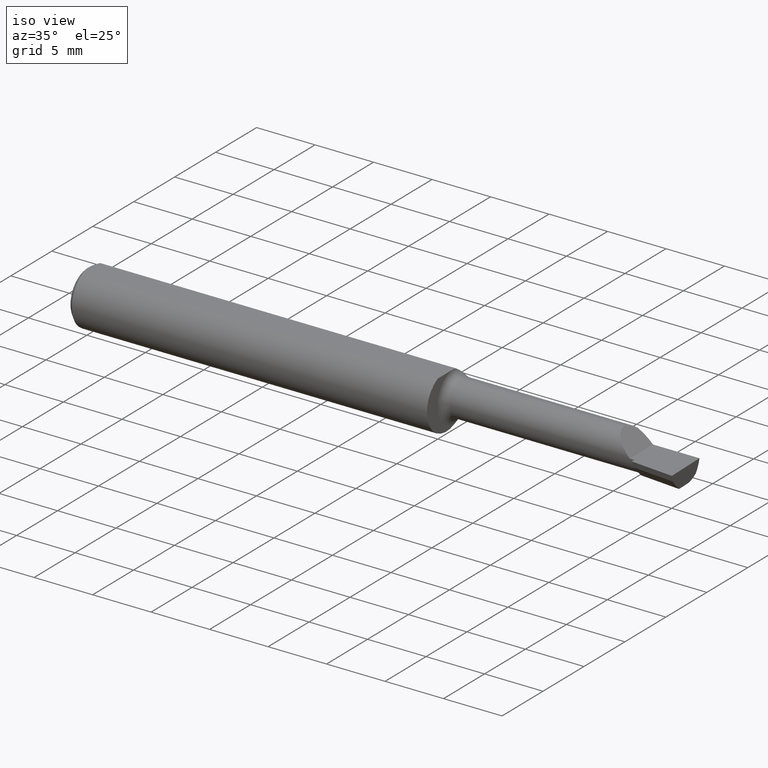
[diagram: clean part render]
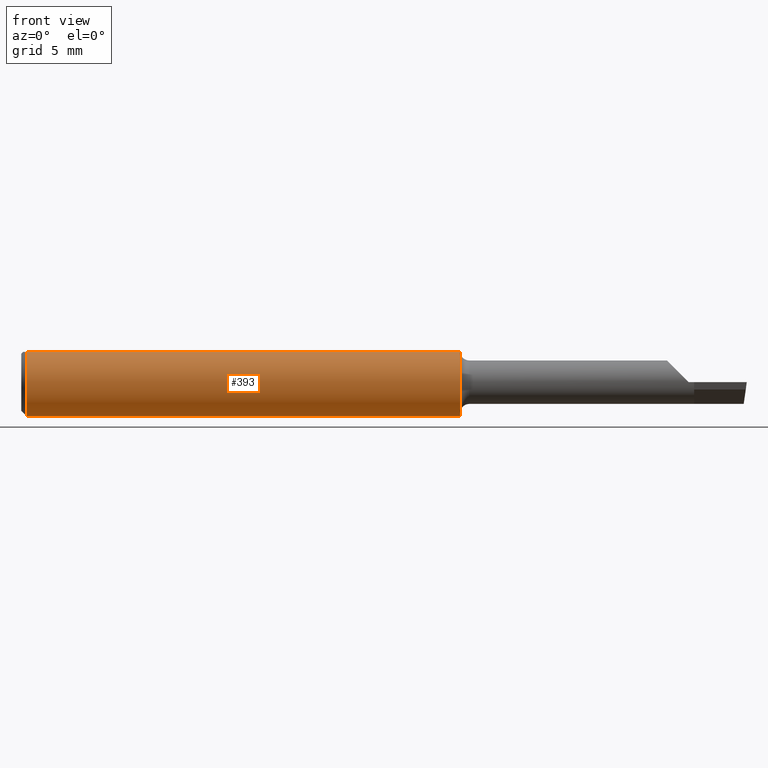
[diagram: tour spotlight — one face highlighted and labeled with its STEP entity id]
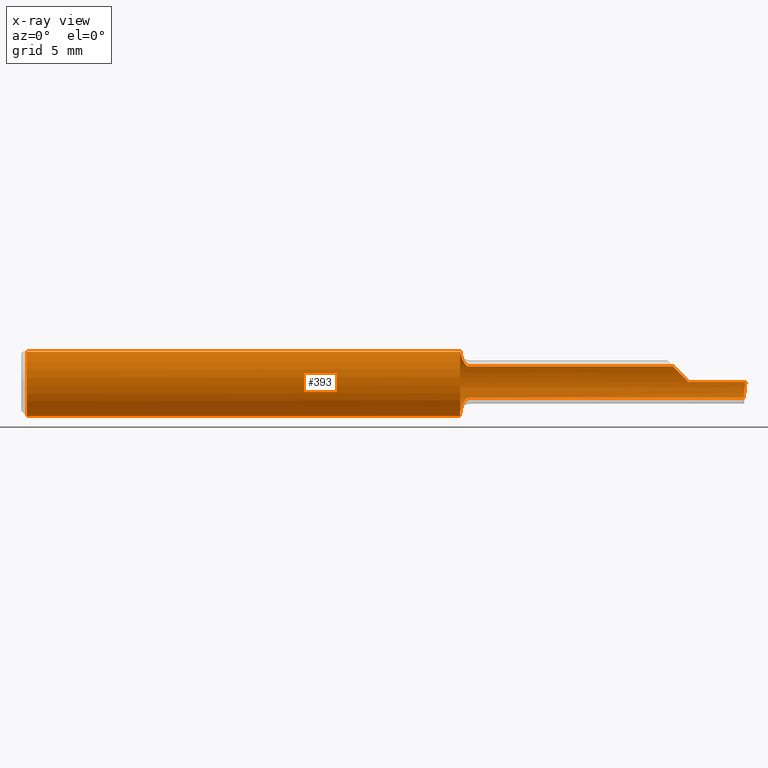
[diagram: x-ray of the same camera — body ghosted, this tour face saturated]
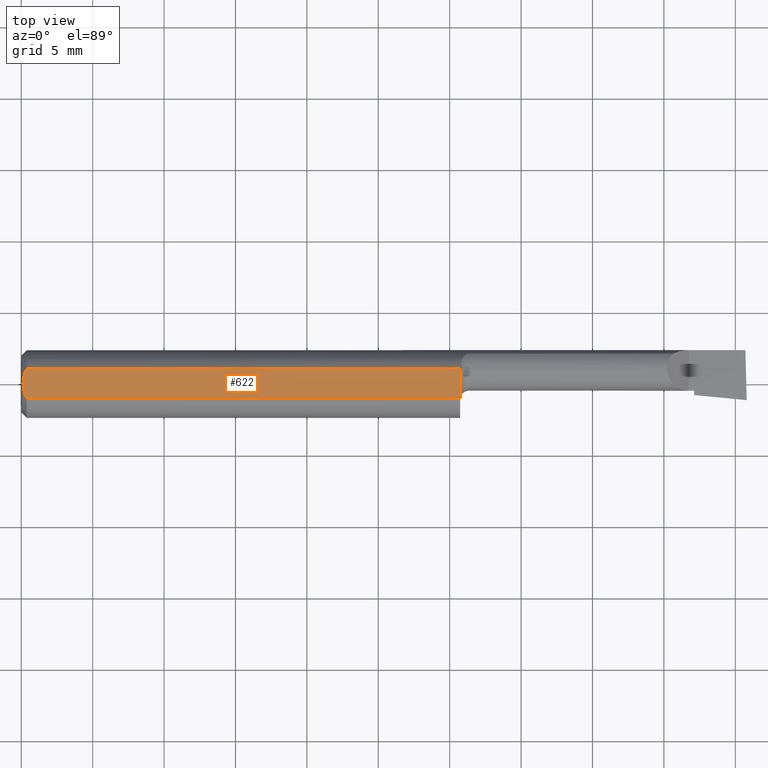
[diagram: tour spotlight — one face highlighted and labeled with its STEP entity id]
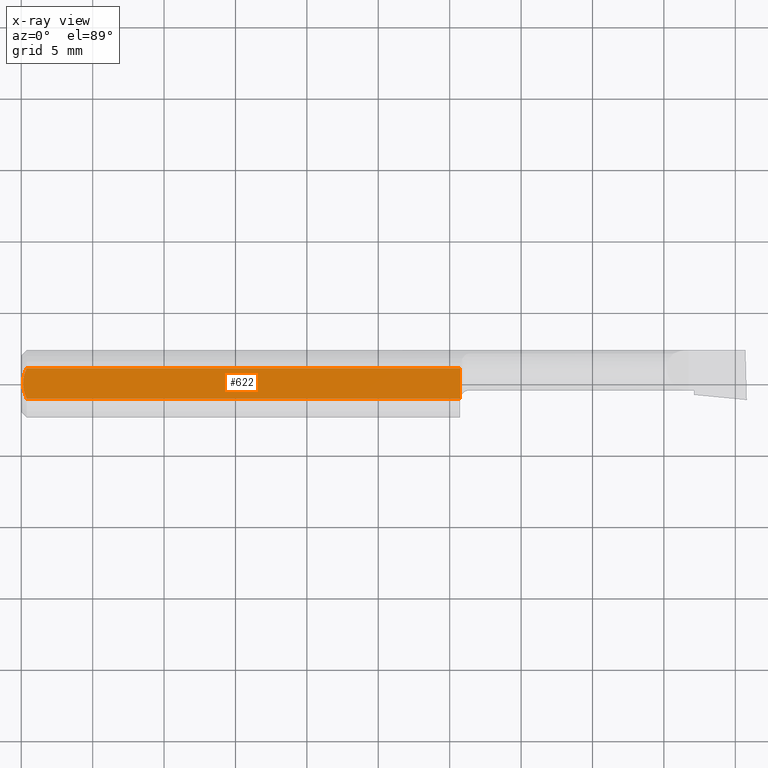
[diagram: x-ray of the same camera — body ghosted, this tour face saturated]
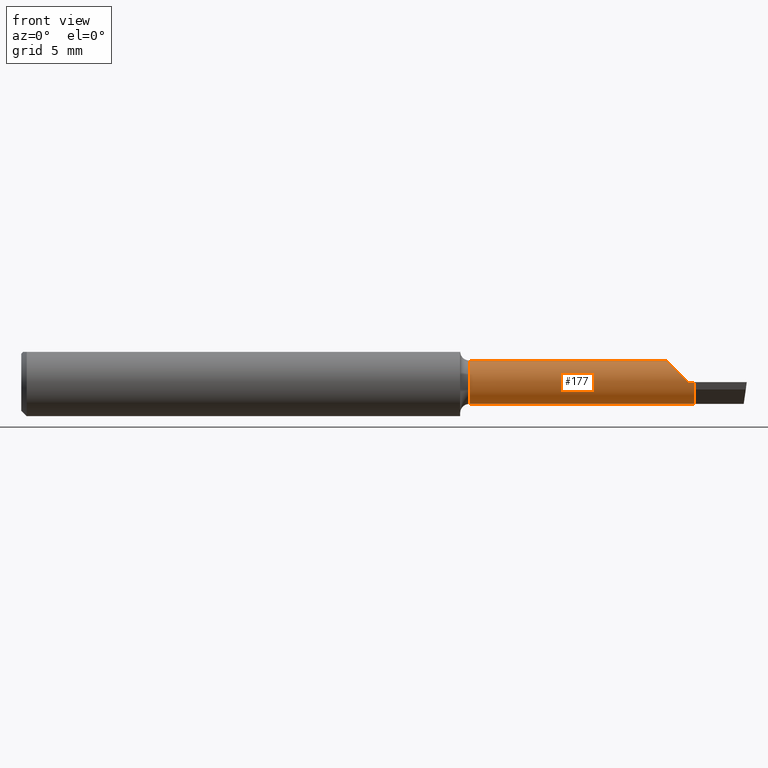
[diagram: tour spotlight — one face highlighted and labeled with its STEP entity id]
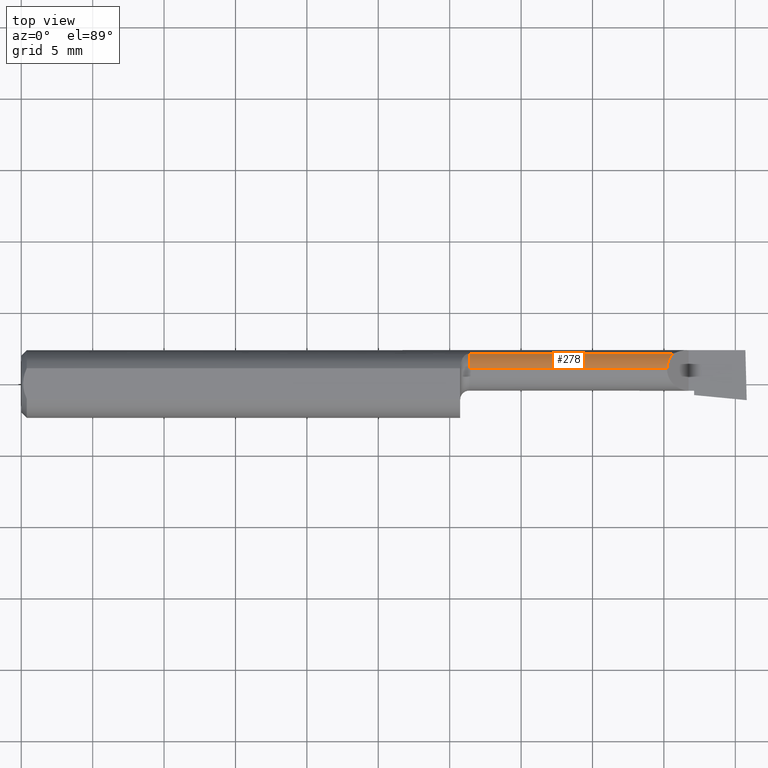
[diagram: tour spotlight — one face highlighted and labeled with its STEP entity id]
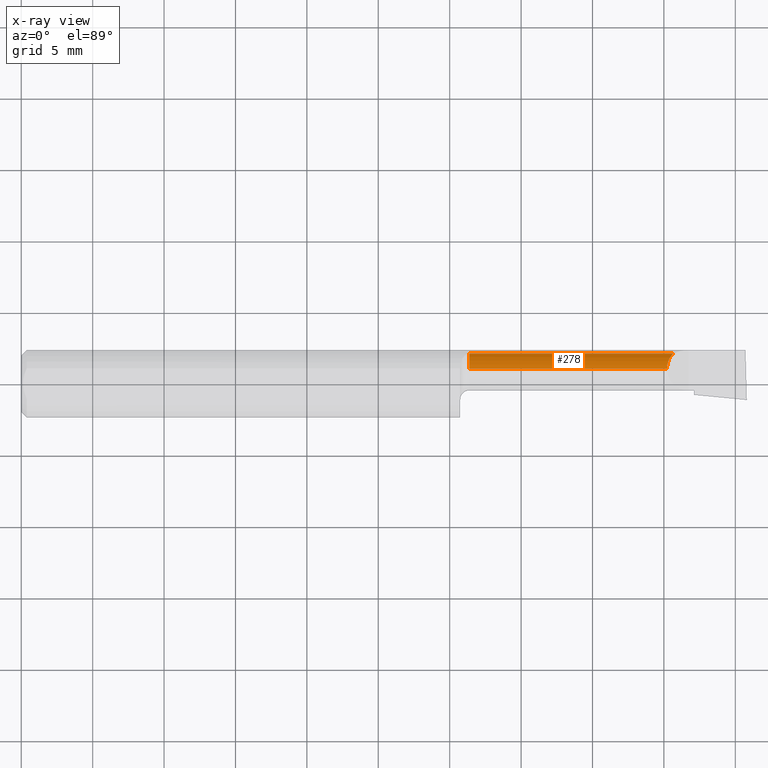
[diagram: x-ray of the same camera — body ghosted, this tour face saturated]
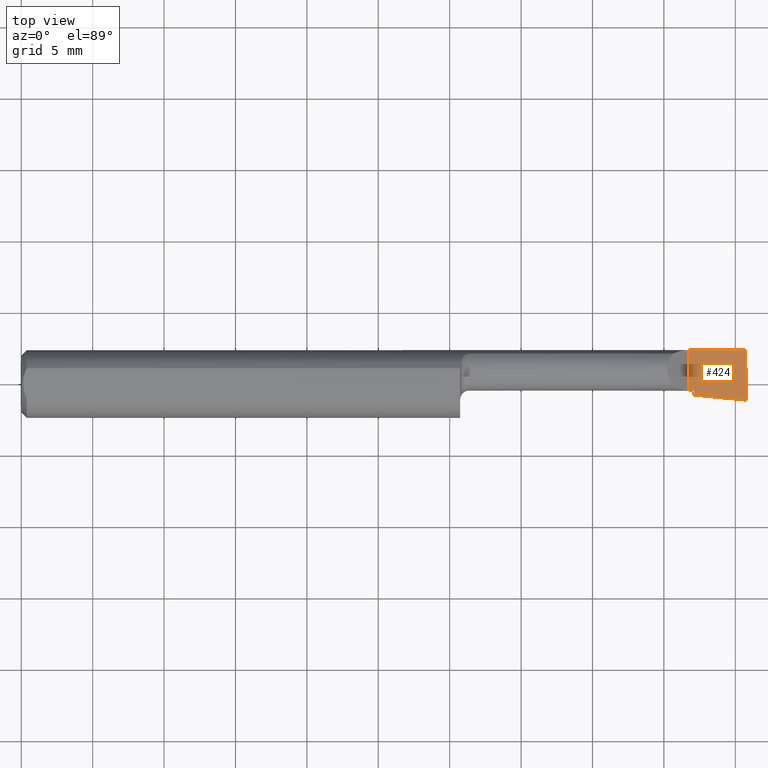
[diagram: tour spotlight — one face highlighted and labeled with its STEP entity id]
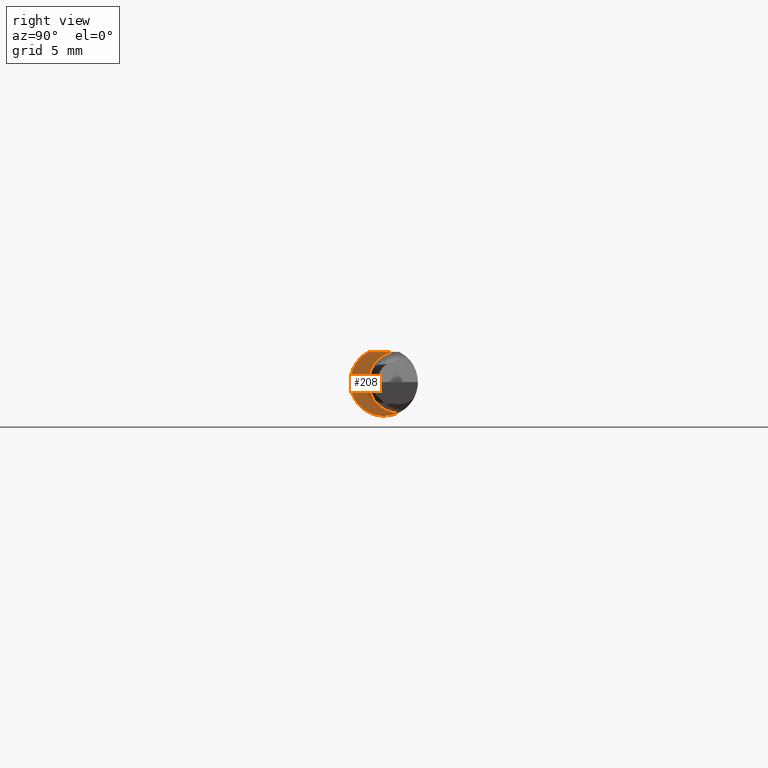
[diagram: tour spotlight — one face highlighted and labeled with its STEP entity id]
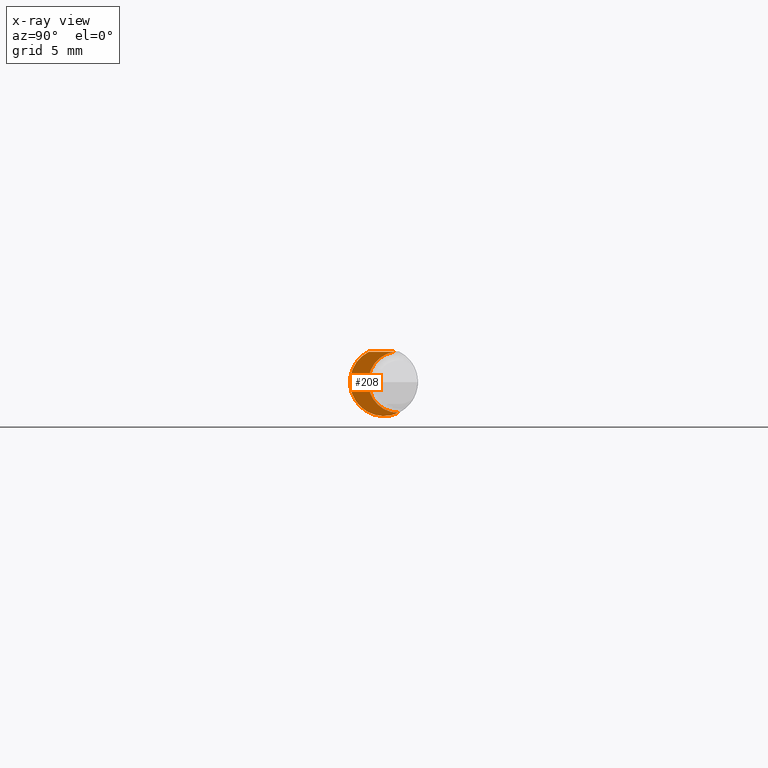
[diagram: x-ray of the same camera — body ghosted, this tour face saturated]
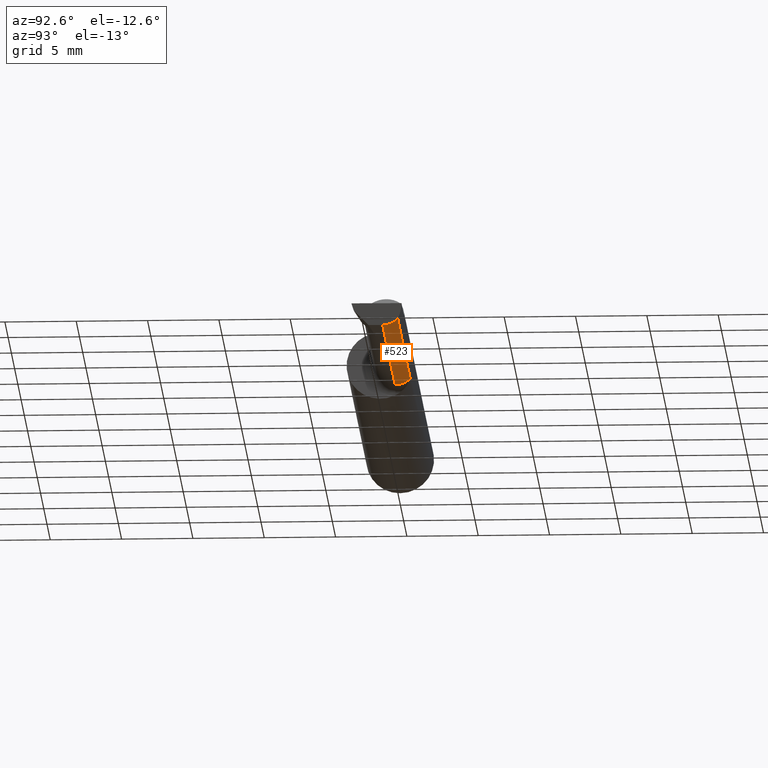
[diagram: tour spotlight — one face highlighted and labeled with its STEP entity id]
A machine part: a face-by-face anatomy tour. The part has 19 B-rep faces; the first image is the clean iso view, then the 7 largest visible faces are spotlighted one at a time (largest first), each with its STEP entity span.

Face 1 — front view, entity #393. An x-ray twin of the same camera follows (body ghosted, this face saturated) — the face is partly hidden behind the body. In plain terms, the highlighted cylindrical surface (edge-blend (fillet) strip) has radius 2.3774 mm, axis along (-1, -0, -0).
Definition (entity closure, byte-faithful):
#2 = CARTESIAN_POINT ( 'NONE',  ( 1.213721006865827290, 0.06478644025684748842, 0.06776242552123297458 ) ) ;
#8 = ORIENTED_EDGE ( 'NONE', *, *, #196, .T. ) ;
#10 = CARTESIAN_POINT ( 'NONE',  ( 1.210020127471513218, 0.04150000000000002298, -0.08389702020930182857 ) ) ;
#12 = CARTESIAN_POINT ( 'NONE',  ( 1.810264301876177706, 0.09002356847881784474, 0.02973569812382189162 ) ) ;
#23 = CARTESIAN_POINT ( 'NONE',  ( 1.234999999999999876, 0.08307469879518031286, -0.04312255117789348668 ) ) ;
#27 = VERTEX_POINT ( 'NONE', #529 ) ;
#33 = EDGE_CURVE ( 'NONE', #671, #87, #301, .T. ) ;
#38 = B_SPLINE_CURVE_WITH_KNOTS ( 'NONE', 3,
 ( #10, #270, #443, #650 ),
 .UNSPECIFIED., .F., .F.,
 ( 4, 4 ),
 ( 0.001735506710063781152, 0.001793010945052093703 ),
 .UNSPECIFIED. ) ;
#43 = VERTEX_POINT ( 'NONE', #203 ) ;
#58 = LINE ( 'NONE', #277, #188 ) ;
#68 = EDGE_CURVE ( 'NONE', #437, #609, #517, .T. ) ;
#71 =( BOUNDED_CURVE ( )  B_SPLINE_CURVE ( 3, ( #101, #153, #99, #470 ),
 .UNSPECIFIED., .F., .F. ) 
 B_SPLINE_CURVE_WITH_KNOTS ( ( 4, 4 ),
 ( 4.934903206476700888, 5.413699339028699598 ),
 .UNSPECIFIED. ) 
 CURVE ( )  GEOMETRIC_REPRESENTATION_ITEM ( )  RATIONAL_B_SPLINE_CURVE ( ( 1.000000000000000000, 0.9809872534005955602, 0.9809872534005955602, 1.000000000000000000 ) ) 
 REPRESENTATION_ITEM ( '' )  );
#87 = VERTEX_POINT ( 'NONE', #628 ) ;
#89 = CARTESIAN_POINT ( 'NONE',  ( 1.210020127471513218, 0.04150000000000002298, -0.08389702020930182857 ) ) ;
#90 = ORIENTED_EDGE ( 'NONE', *, *, #33, .F. ) ;
#93 = CARTESIAN_POINT ( 'NONE',  ( 1.840000000000000080, 0.09359999999999982223, 1.959434878635766031E-17 ) ) ;
#96 = CARTESIAN_POINT ( 'NONE',  ( 1.234999999999999876, 0.08307469879517995204, 0.04312255117789382669 ) ) ;
#99 = CARTESIAN_POINT ( 'NONE',  ( 1.992878167367474918, 0.09002356847881788637, -0.02973569812382179794 ) ) ;
#101 = CARTESIAN_POINT ( 'NONE',  ( 1.996303070958813874, 0.09359999999999991938, -6.619415695412894900E-17 ) ) ;
#103 = EDGE_CURVE ( 'NONE', #497, #27, #146, .T. ) ;
#108 = CARTESIAN_POINT ( 'NONE',  ( 1.223723886093657010, 0.07921817987507871750, 0.04991299092652205088 ) ) ;
#113 = CARTESIAN_POINT ( 'NONE',  ( 1.210661035553191267, 0.05185656404701165234, 0.07811662714583204881 ) ) ;
#116 = CARTESIAN_POINT ( 'NONE',  ( 1.796877448822106427, 0.08307469879518060429, 0.04312255117789316750 ) ) ;
#122 = CARTESIAN_POINT ( 'NONE',  ( 1.219277238843510691, 0.07518688180261705323, 0.05595855205958146644 ) ) ;
#128 = ORIENTED_EDGE ( 'NONE', *, *, #449, .T. ) ;
#130 = CARTESIAN_POINT ( 'NONE',  ( 1.217076397983111180, 0.07187891021191449015, -0.06019546731975726483 ) ) ;
#133 = AXIS2_PLACEMENT_3D ( 'NONE', #526, #263, #473 ) ;
#139 = CARTESIAN_POINT ( 'NONE',  ( 1.225354605856553203, 0.08039319987159025682, -0.04797642756495561905 ) ) ;
#143 = VERTEX_POINT ( 'NONE', #496 ) ;
#146 = LINE ( 'NONE', #681, #617 ) ;
#151 = EDGE_CURVE ( 'NONE', #143, #302, #38, .T. ) ;
#153 = CARTESIAN_POINT ( 'NONE',  ( 1.994517249006380943, 0.09360000000000004428, -0.01508292493422510976 ) ) ;
#154 = CARTESIAN_POINT ( 'NONE',  ( 0.01499999999999999598, 0.000000000000000000, 0.000000000000000000 ) ) ;
#165 = VERTEX_POINT ( 'NONE', #587 ) ;
#172 = EDGE_CURVE ( 'NONE', #605, #411, #483, .T. ) ;
#183 = B_SPLINE_CURVE_WITH_KNOTS ( 'NONE', 3,
 ( #23, #614, #554, #139, #608, #241, #130, #454, #354, #564, #501, #89 ),
 .UNSPECIFIED., .F., .F.,
 ( 4, 2, 2, 2, 2, 4 ),
 ( 1.963546462201886234E-07, 0.0002171101490734151924, 0.0004340239435006102288, 0.0008678515323550006809, 0.001301679121209391079, 0.001735506710063781152 ),
 .UNSPECIFIED. ) ;
#185 = CYLINDRICAL_SURFACE ( 'NONE', #458, 0.09360000000000001652 ) ;
#188 = VECTOR ( 'NONE', #489, 39.37007874015748143 ) ;
#196 = EDGE_CURVE ( 'NONE', #302, #165, #410, .T. ) ;
#199 = ORIENTED_EDGE ( 'NONE', *, *, #684, .T. ) ;
#200 = AXIS2_PLACEMENT_3D ( 'NONE', #154, #527, #366 ) ;
#203 = CARTESIAN_POINT ( 'NONE',  ( 1.996303070958813874, 0.09359999999999991938, -6.619415695412894900E-17 ) ) ;
#206 = EDGE_CURVE ( 'NONE', #27, #437, #661, .T. ) ;
#217 =( BOUNDED_CURVE ( )  B_SPLINE_CURVE ( 3, ( #596, #12, #687, #427 ),
 .UNSPECIFIED., .F., .F. ) 
 B_SPLINE_CURVE_WITH_KNOTS ( ( 4, 4 ),
 ( 1.092000194242895628, 1.570796326794896558 ),
 .UNSPECIFIED. ) 
 CURVE ( )  GEOMETRIC_REPRESENTATION_ITEM ( )  RATIONAL_B_SPLINE_CURVE ( ( 1.000000000000000000, 0.9809872534005954492, 0.9809872534005954492, 1.000000000000000000 ) ) 
 REPRESENTATION_ITEM ( '' )  );
#224 = CARTESIAN_POINT ( 'NONE',  ( 1.209999999999999964, 0.000000000000000000, 0.000000000000000000 ) ) ;
#228 = CARTESIAN_POINT ( 'NONE',  ( 1.217169981117899757, 0.07201923175886847106, 0.06001882546782391636 ) ) ;
#233 = EDGE_CURVE ( 'NONE', #444, #43, #58, .T. ) ;
#238 = CARTESIAN_POINT ( 'NONE',  ( 1.209999999999999964, 0.03946024096385525315, -0.08487549341873944220 ) ) ;
#239 = EDGE_LOOP ( 'NONE', ( #376, #128, #502, #452, #342, #8, #347, #90, #350, #282, #505, #639, #199 ) ) ;
#241 = CARTESIAN_POINT ( 'NONE',  ( 1.219237437666585544, 0.07513599091568971822, -0.05602756047418890745 ) ) ;
#254 = DIRECTION ( 'NONE',  ( -1.000000000000000000, -0.000000000000000000, -0.000000000000000000 ) ) ;
#263 = DIRECTION ( 'NONE',  ( -1.000000000000000000, -0.000000000000000000, -0.000000000000000000 ) ) ;
#268 = CARTESIAN_POINT ( 'NONE',  ( 1.991479316373666597, 0.08307469879518067368, -0.04312255117789308423 ) ) ;
#270 = CARTESIAN_POINT ( 'NONE',  ( 1.210006719116742735, 0.04082489400077262548, -0.08423096411932441685 ) ) ;
#277 = CARTESIAN_POINT ( 'NONE',  ( 5.659797890829564224E-31, 0.09359999999999998876, 1.030335658007946637E-15 ) ) ;
#282 = ORIENTED_EDGE ( 'NONE', *, *, #103, .T. ) ;
#289 = CIRCLE ( 'NONE', #133, 0.09360000000000001652 ) ;
#301 = CIRCLE ( 'NONE', #200, 0.09360000000000001652 ) ;
#302 = VERTEX_POINT ( 'NONE', #238 ) ;
#308 = CARTESIAN_POINT ( 'NONE',  ( 0.000000000000000000, -0.04209513035969835587, 0.08360000000000000764 ) ) ;
#329 = CARTESIAN_POINT ( 'NONE',  ( 1.229521451227007622, 0.08233651528522353824, 0.04455777109850386775 ) ) ;
#331 = CARTESIAN_POINT ( 'NONE',  ( 0.01499999999999999598, 0.000000000000000000, -0.09360000000000001652 ) ) ;
#333 = CARTESIAN_POINT ( 'NONE',  ( 1.545000000000000151, 0.08307469879518067368, -0.04312255117789308423 ) ) ;
#338 = CARTESIAN_POINT ( 'NONE',  ( 1.234999999999999876, 0.08307469879517995204, 0.04312255117789382669 ) ) ;
#341 = DIRECTION ( 'NONE',  ( -1.000000000000000000, -0.000000000000000000, -0.000000000000000000 ) ) ;
#342 = ORIENTED_EDGE ( 'NONE', *, *, #151, .T. ) ;
#347 = ORIENTED_EDGE ( 'NONE', *, *, #465, .T. ) ;
#350 = ORIENTED_EDGE ( 'NONE', *, *, #460, .F. ) ;
#354 = CARTESIAN_POINT ( 'NONE',  ( 1.212355770679724110, 0.06040702343486014508, -0.07171535245186162755 ) ) ;
#355 = EDGE_CURVE ( 'NONE', #411, #143, #183, .T. ) ;
#366 = DIRECTION ( 'NONE',  ( 0.000000000000000000, 0.000000000000000000, 1.000000000000000000 ) ) ;
#376 = ORIENTED_EDGE ( 'NONE', *, *, #233, .T. ) ;
#388 = DIRECTION ( 'NONE',  ( 0.000000000000000000, 0.000000000000000000, 1.000000000000000000 ) ) ;
#393 = ADVANCED_FACE ( 'NONE', ( #659 ), #185, .T. ) ;
#410 = CIRCLE ( 'NONE', #510, 0.09360000000000001652 ) ;
#411 = VERTEX_POINT ( 'NONE', #571 ) ;
#427 = CARTESIAN_POINT ( 'NONE',  ( 1.840000000000000080, 0.09359999999999982223, 1.959434878635766031E-17 ) ) ;
#436 = CARTESIAN_POINT ( 'NONE',  ( 1.232123707331537199, 0.08307469879541770630, 0.04312255117743663685 ) ) ;
#437 = VERTEX_POINT ( 'NONE', #96 ) ;
#443 = CARTESIAN_POINT ( 'NONE',  ( 1.209999999999999964, 0.04014498638740759962, -0.08455714216888024493 ) ) ;
#444 = VERTEX_POINT ( 'NONE', #93 ) ;
#448 = CARTESIAN_POINT ( 'NONE',  ( 1.210163936266268392, 0.04714148439307217636, 0.08105900800387490224 ) ) ;
#449 = EDGE_CURVE ( 'NONE', #43, #605, #71, .T. ) ;
#452 = ORIENTED_EDGE ( 'NONE', *, *, #355, .T. ) ;
#454 = CARTESIAN_POINT ( 'NONE',  ( 1.213605992736884520, 0.06448586599545302889, -0.06805619079784669401 ) ) ;
#458 = AXIS2_PLACEMENT_3D ( 'NONE', #463, #341, #670 ) ;
#460 = EDGE_CURVE ( 'NONE', #497, #671, #289, .T. ) ;
#463 = CARTESIAN_POINT ( 'NONE',  ( 0.000000000000000000, 0.000000000000000000, 0.000000000000000000 ) ) ;
#465 = EDGE_CURVE ( 'NONE', #165, #87, #516, .T. ) ;
#470 = CARTESIAN_POINT ( 'NONE',  ( 1.991479316373666597, 0.08307469879518067368, -0.04312255117789308423 ) ) ;
#471 = DIRECTION ( 'NONE',  ( 1.000000000000000000, 0.000000000000000000, 0.000000000000000000 ) ) ;
#473 = DIRECTION ( 'NONE',  ( 0.000000000000000000, 0.000000000000000000, 1.000000000000000000 ) ) ;
#474 = CARTESIAN_POINT ( 'NONE',  ( 1.545000000000000151, 0.08307469879518067368, 0.04312255117789308423 ) ) ;
#478 = CARTESIAN_POINT ( 'NONE',  ( 0.01499999999999999598, 0.04209513035969837669, 0.08360000000000000764 ) ) ;
#483 = LINE ( 'NONE', #333, #551 ) ;
#489 = DIRECTION ( 'NONE',  ( 1.000000000000000000, 0.000000000000000000, 0.000000000000000000 ) ) ;
#496 = CARTESIAN_POINT ( 'NONE',  ( 1.210020127471513218, 0.04150000000000002298, -0.08389702020930182857 ) ) ;
#497 = VERTEX_POINT ( 'NONE', #478 ) ;
#501 = CARTESIAN_POINT ( 'NONE',  ( 1.210121283746727894, 0.04659318327468385534, -0.08137765652544186323 ) ) ;
#502 = ORIENTED_EDGE ( 'NONE', *, *, #172, .T. ) ;
#505 = ORIENTED_EDGE ( 'NONE', *, *, #206, .T. ) ;
#510 = AXIS2_PLACEMENT_3D ( 'NONE', #224, #646, #388 ) ;
#516 = LINE ( 'NONE', #308, #573 ) ;
#517 = LINE ( 'NONE', #474, #520 ) ;
#520 = VECTOR ( 'NONE', #471, 39.37007874015748143 ) ;
#526 = CARTESIAN_POINT ( 'NONE',  ( 0.01499999999999999598, 0.000000000000000000, 0.000000000000000000 ) ) ;
#527 = DIRECTION ( 'NONE',  ( -1.000000000000000000, -0.000000000000000000, -0.000000000000000000 ) ) ;
#529 = CARTESIAN_POINT ( 'NONE',  ( 1.210033712670300243, 0.04209513035969836975, 0.08360000000000000764 ) ) ;
#536 = CARTESIAN_POINT ( 'NONE',  ( 1.210033712670300243, 0.04209513035969836975, 0.08360000000000000764 ) ) ;
#541 = DIRECTION ( 'NONE',  ( -1.000000000000000000, -0.000000000000000000, -0.000000000000000000 ) ) ;
#551 = VECTOR ( 'NONE', #541, 39.37007874015748143 ) ;
#554 = CARTESIAN_POINT ( 'NONE',  ( 1.229498465877713720, 0.08233174416856350875, -0.04456779206614460559 ) ) ;
#564 = CARTESIAN_POINT ( 'NONE',  ( 1.210604804002112678, 0.05145819953596697527, -0.07838465384289887428 ) ) ;
#571 = CARTESIAN_POINT ( 'NONE',  ( 1.234999999999999876, 0.08307469879518031286, -0.04312255117789348668 ) ) ;
#573 = VECTOR ( 'NONE', #254, 39.37007874015748143 ) ;
#587 = CARTESIAN_POINT ( 'NONE',  ( 1.209999999999999964, -0.04209513035969836975, 0.08360000000000000764 ) ) ;
#596 = CARTESIAN_POINT ( 'NONE',  ( 1.796877448822106427, 0.08307469879518060429, 0.04312255117789316750 ) ) ;
#597 = CARTESIAN_POINT ( 'NONE',  ( 1.212429122971264928, 0.06066239981255423797, 0.07149394324265920253 ) ) ;
#605 = VERTEX_POINT ( 'NONE', #268 ) ;
#608 = CARTESIAN_POINT ( 'NONE',  ( 1.223672693420809310, 0.07917899622880006372, -0.04997532113046019436 ) ) ;
#609 = VERTEX_POINT ( 'NONE', #116 ) ;
#614 = CARTESIAN_POINT ( 'NONE',  ( 1.232100790213033870, 0.08307469879518039613, -0.04312255117789361158 ) ) ;
#617 = VECTOR ( 'NONE', #634, 39.37007874015748143 ) ;
#628 = CARTESIAN_POINT ( 'NONE',  ( 0.01499999999999999944, -0.04209513035969835587, 0.08360000000000000764 ) ) ;
#634 = DIRECTION ( 'NONE',  ( 1.000000000000000000, 0.000000000000000000, 0.000000000000000000 ) ) ;
#639 = ORIENTED_EDGE ( 'NONE', *, *, #68, .T. ) ;
#646 = DIRECTION ( 'NONE',  ( -1.000000000000000000, -0.000000000000000000, -0.000000000000000000 ) ) ;
#650 = CARTESIAN_POINT ( 'NONE',  ( 1.209999999999999964, 0.03946024096385525315, -0.08487549341873944220 ) ) ;
#654 = CARTESIAN_POINT ( 'NONE',  ( 1.225413575230741348, 0.08042664989321170188, 0.04791921015141275414 ) ) ;
#659 = FACE_OUTER_BOUND ( 'NONE', #239, .T. ) ;
#661 = B_SPLINE_CURVE_WITH_KNOTS ( 'NONE', 3,
 ( #536, #448, #113, #597, #2, #228, #122, #108, #654, #329, #436, #338 ),
 .UNSPECIFIED., .F., .F.,
 ( 4, 2, 2, 2, 2, 4 ),
 ( 4.385794166512016294E-07, 0.0004249653867803380308, 0.0008494921941440251607, 0.001274019001507712074, 0.001486282405189555964, 0.001698545808871399420 ),
 .UNSPECIFIED. ) ;
#670 = DIRECTION ( 'NONE',  ( 0.000000000000000000, 0.000000000000000000, 1.000000000000000000 ) ) ;
#671 = VERTEX_POINT ( 'NONE', #331 ) ;
#681 = CARTESIAN_POINT ( 'NONE',  ( 0.000000000000000000, 0.04209513035969837669, 0.08360000000000000764 ) ) ;
#684 = EDGE_CURVE ( 'NONE', #609, #444, #217, .T. ) ;
#687 = CARTESIAN_POINT ( 'NONE',  ( 1.824917075065774608, 0.09360000000000001652, 0.01508292493422514619 ) ) ;

Face 2 — top view, entity #622. An x-ray twin of the same camera follows (body ghosted, this face saturated) — the face is partly hidden behind the body. In plain terms, the highlighted planar face has unit normal (0, -0, -1).
Definition (entity closure, byte-faithful):
#9 = PLANE ( 'NONE',  #29 ) ;
#13 = CARTESIAN_POINT ( 'NONE',  ( 1.210033712670300243, 0.04209513035969836975, 0.08360000000000000764 ) ) ;
#27 = VERTEX_POINT ( 'NONE', #529 ) ;
#29 = AXIS2_PLACEMENT_3D ( 'NONE', #121, #112, #491 ) ;
#48 = CARTESIAN_POINT ( 'NONE',  ( 0.009539353699420828961, -0.02875682547511369466, 0.08360000000000000764 ) ) ;
#74 = CARTESIAN_POINT ( 'NONE',  ( 0.01499999999999999598, 0.04209513035969837669, 0.08360000000000000764 ) ) ;
#87 = VERTEX_POINT ( 'NONE', #628 ) ;
#97 = CARTESIAN_POINT ( 'NONE',  ( 1.210033822879743814, 0.04159918775969423388, 0.08360000000000000764 ) ) ;
#103 = EDGE_CURVE ( 'NONE', #497, #27, #146, .T. ) ;
#111 = VERTEX_POINT ( 'NONE', #159 ) ;
#112 = DIRECTION ( 'NONE',  ( 0.000000000000000000, -1.189000693621284344E-16, -1.000000000000000000 ) ) ;
#114 = ORIENTED_EDGE ( 'NONE', *, *, #141, .T. ) ;
#121 = CARTESIAN_POINT ( 'NONE',  ( 2.000000000000000000, 0.1436000000000000332, 0.08359999999999999376 ) ) ;
#127 = CARTESIAN_POINT ( 'NONE',  ( 0.009492654797564338900, 0.02859466010166627700, 0.08360000000000000764 ) ) ;
#137 = CARTESIAN_POINT ( 'NONE',  ( 1.209999999999999742, 0.02916612216507176447, 0.08360000000000000764 ) ) ;
#141 = EDGE_CURVE ( 'NONE', #450, #27, #626, .T. ) ;
#146 = LINE ( 'NONE', #681, #617 ) ;
#147 = CARTESIAN_POINT ( 'NONE',  ( 0.005000000000000236026, 1.025183009042025117E-17, 0.08360000000000000764 ) ) ;
#159 = CARTESIAN_POINT ( 'NONE',  ( 1.209999999999999964, 0.02669966216601753206, 0.08360000000000000764 ) ) ;
#165 = VERTEX_POINT ( 'NONE', #587 ) ;
#194 = CARTESIAN_POINT ( 'NONE',  ( 0.005000000000000225618, 0.007308422719211825694, 0.08360000000000000764 ) ) ;
#214 = ORIENTED_EDGE ( 'NONE', *, *, #103, .F. ) ;
#221 = ORIENTED_EDGE ( 'NONE', *, *, #465, .F. ) ;
#232 = EDGE_LOOP ( 'NONE', ( #330, #456, #114, #214, #384, #679, #221 ) ) ;
#250 = CARTESIAN_POINT ( 'NONE',  ( 1.210033822879743814, 0.03903342675882736507, 0.08360000000000000764 ) ) ;
#252 = DIRECTION ( 'NONE',  ( 0.000000000000000000, 1.000000000000000000, -1.189000693621284344E-16 ) ) ;
#254 = DIRECTION ( 'NONE',  ( -1.000000000000000000, -0.000000000000000000, -0.000000000000000000 ) ) ;
#258 = CARTESIAN_POINT ( 'NONE',  ( 0.005000000000000227353, -0.007328888879231044290, 0.08360000000000000764 ) ) ;
#275 = FACE_OUTER_BOUND ( 'NONE', #232, .T. ) ;
#283 = EDGE_CURVE ( 'NONE', #165, #111, #297, .T. ) ;
#297 = LINE ( 'NONE', #398, #638 ) ;
#307 = EDGE_CURVE ( 'NONE', #111, #450, #577, .T. ) ;
#308 = CARTESIAN_POINT ( 'NONE',  ( 0.000000000000000000, -0.04209513035969835587, 0.08360000000000000764 ) ) ;
#311 = CARTESIAN_POINT ( 'NONE',  ( 1.210033822879743814, 0.04150000000000001604, 0.08360000000000000764 ) ) ;
#312 = CARTESIAN_POINT ( 'NONE',  ( 1.210033804492674614, 0.04179756391332097032, 0.08360000000000000764 ) ) ;
#315 = CARTESIAN_POINT ( 'NONE',  ( 0.01499999999999999944, -0.04209513035969835587, 0.08360000000000000764 ) ) ;
#330 = ORIENTED_EDGE ( 'NONE', *, *, #283, .T. ) ;
#334 = EDGE_CURVE ( 'NONE', #612, #497, #381, .T. ) ;
#337 = CARTESIAN_POINT ( 'NONE',  ( 0.005000000000000236026, 1.025183009042025117E-17, 0.08360000000000000764 ) ) ;
#344 = CARTESIAN_POINT ( 'NONE',  ( 1.210027419345087285, 0.03656676420725885057, 0.08359999999999997988 ) ) ;
#358 = CARTESIAN_POINT ( 'NONE',  ( 0.01206089165507025218, -0.03555991978469313225, 0.08360000000000000764 ) ) ;
#381 = B_SPLINE_CURVE_WITH_KNOTS ( 'NONE', 3,
 ( #667, #194, #656, #127, #407, #74 ),
 .UNSPECIFIED., .F., .F.,
 ( 4, 2, 4 ),
 ( 0.006881281100865560205, 0.007427683811376459971, 0.007974086521887359738 ),
 .UNSPECIFIED. ) ;
#384 = ORIENTED_EDGE ( 'NONE', *, *, #334, .F. ) ;
#398 = CARTESIAN_POINT ( 'NONE',  ( 1.209999999999999964, 0.1436000000000000332, 0.08359999999999999376 ) ) ;
#407 = CARTESIAN_POINT ( 'NONE',  ( 0.01203648650249651043, 0.03550565407121124978, 0.08360000000000000764 ) ) ;
#450 = VERTEX_POINT ( 'NONE', #311 ) ;
#451 = CARTESIAN_POINT ( 'NONE',  ( 1.210033822879743814, 0.04150000000000001604, 0.08360000000000000764 ) ) ;
#456 = ORIENTED_EDGE ( 'NONE', *, *, #307, .T. ) ;
#465 = EDGE_CURVE ( 'NONE', #165, #87, #516, .T. ) ;
#478 = CARTESIAN_POINT ( 'NONE',  ( 0.01499999999999999598, 0.04209513035969837669, 0.08360000000000000764 ) ) ;
#491 = DIRECTION ( 'NONE',  ( 0.000000000000000000, 1.000000000000000000, -1.189000693621284344E-16 ) ) ;
#494 = EDGE_CURVE ( 'NONE', #87, #612, #611, .T. ) ;
#497 = VERTEX_POINT ( 'NONE', #478 ) ;
#516 = LINE ( 'NONE', #308, #573 ) ;
#529 = CARTESIAN_POINT ( 'NONE',  ( 1.210033712670300243, 0.04209513035969836975, 0.08360000000000000764 ) ) ;
#561 = CARTESIAN_POINT ( 'NONE',  ( 1.210010473476444082, 0.03163306423249023086, 0.08360000000000000764 ) ) ;
#573 = VECTOR ( 'NONE', #254, 39.37007874015748143 ) ;
#574 = CARTESIAN_POINT ( 'NONE',  ( 1.210033822879743814, 0.04150000000000001604, 0.08360000000000000764 ) ) ;
#577 = B_SPLINE_CURVE_WITH_KNOTS ( 'NONE', 3,
 ( #610, #137, #561, #344, #250, #451 ),
 .UNSPECIFIED., .F., .F.,
 ( 4, 2, 4 ),
 ( 0.0007618363011808182428, 0.0009495817856828732677, 0.001137327270184928293 ),
 .UNSPECIFIED. ) ;
#587 = CARTESIAN_POINT ( 'NONE',  ( 1.209999999999999964, -0.04209513035969836975, 0.08360000000000000764 ) ) ;
#590 = CARTESIAN_POINT ( 'NONE',  ( 1.210033749376515422, 0.04199594133387047484, 0.08360000000000003539 ) ) ;
#610 = CARTESIAN_POINT ( 'NONE',  ( 1.209999999999999964, 0.02669966216601753206, 0.08360000000000000764 ) ) ;
#611 = B_SPLINE_CURVE_WITH_KNOTS ( 'NONE', 3,
 ( #315, #358, #48, #618, #258, #147 ),
 .UNSPECIFIED., .F., .F.,
 ( 4, 2, 4 ),
 ( 0.005785415439423114564, 0.006333348270144337384, 0.006881281100865560205 ),
 .UNSPECIFIED. ) ;
#612 = VERTEX_POINT ( 'NONE', #337 ) ;
#617 = VECTOR ( 'NONE', #634, 39.37007874015748143 ) ;
#618 = CARTESIAN_POINT ( 'NONE',  ( 0.005975039161239529238, -0.01453776427033147065, 0.08359999999999997988 ) ) ;
#622 = ADVANCED_FACE ( 'NONE', ( #275 ), #9, .F. ) ;
#626 = B_SPLINE_CURVE_WITH_KNOTS ( 'NONE', 3,
 ( #574, #97, #312, #590, #13 ),
 .UNSPECIFIED., .F., .F.,
 ( 4, 1, 4 ),
 ( 0.001137327270184928293, 0.001144877037485416771, 0.001152426804785905250 ),
 .UNSPECIFIED. ) ;
#628 = CARTESIAN_POINT ( 'NONE',  ( 0.01499999999999999944, -0.04209513035969835587, 0.08360000000000000764 ) ) ;
#634 = DIRECTION ( 'NONE',  ( 1.000000000000000000, 0.000000000000000000, 0.000000000000000000 ) ) ;
#638 = VECTOR ( 'NONE', #252, 39.37007874015748143 ) ;
#656 = CARTESIAN_POINT ( 'NONE',  ( 0.005981829149300843529, 0.01454044632356567453, 0.08360000000000003539 ) ) ;
#667 = CARTESIAN_POINT ( 'NONE',  ( 0.005000000000000236026, 1.025183009042025117E-17, 0.08360000000000000764 ) ) ;
#679 = ORIENTED_EDGE ( 'NONE', *, *, #494, .F. ) ;
#681 = CARTESIAN_POINT ( 'NONE',  ( 0.000000000000000000, 0.04209513035969837669, 0.08360000000000000764 ) ) ;

Face 3 — front view, entity #177. In plain terms, the highlighted cylindrical surface (edge-blend (fillet) strip) has radius 1.5215 mm, axis along (-1, -0, -0).
Definition (entity closure, byte-faithful):
#4 = CARTESIAN_POINT ( 'NONE',  ( 1.840000000000000080, -0.01840000000000013847, 1.959434878635766031E-17 ) ) ;
#20 = EDGE_CURVE ( 'NONE', #174, #63, #630, .T. ) ;
#32 = ORIENTED_EDGE ( 'NONE', *, *, #327, .F. ) ;
#34 = CARTESIAN_POINT ( 'NONE',  ( 0.000000000000000000, 0.04150000000000001604, -0.05990000000000003655 ) ) ;
#36 = CARTESIAN_POINT ( 'NONE',  ( 1.780099999999999349, 0.006411392386148373826, 0.05990000000000003655 ) ) ;
#39 = DIRECTION ( 'NONE',  ( 1.000000000000000000, 0.000000000000000000, 0.000000000000000000 ) ) ;
#42 = CARTESIAN_POINT ( 'NONE',  ( 5.659797890829564224E-31, -0.01840000000000002744, 1.030335658007946637E-15 ) ) ;
#61 = FACE_OUTER_BOUND ( 'NONE', #389, .T. ) ;
#63 = VERTEX_POINT ( 'NONE', #419 ) ;
#65 = CARTESIAN_POINT ( 'NONE',  ( 1.780099999999999349, 0.04150000000000000216, 0.05990000000000003655 ) ) ;
#79 = DIRECTION ( 'NONE',  ( -1.000000000000000000, -0.000000000000000000, -0.000000000000000000 ) ) ;
#86 = EDGE_CURVE ( 'NONE', #643, #192, #345, .T. ) ;
#100 = CARTESIAN_POINT ( 'NONE',  ( 0.000000000000000000, 0.04150000000000000216, 0.05990000000000003655 ) ) ;
#106 = VECTOR ( 'NONE', #207, 39.37007874015748143 ) ;
#110 = DIRECTION ( 'NONE',  ( -1.000000000000000000, -0.000000000000000000, -0.000000000000000000 ) ) ;
#142 = CARTESIAN_POINT ( 'NONE',  ( 1.234999999999999876, 0.04150000000000002298, -0.05990000000000008512 ) ) ;
#171 = CARTESIAN_POINT ( 'NONE',  ( 1.854999999999999982, -0.01839999999999999969, 1.030335658007946243E-15 ) ) ;
#174 = VERTEX_POINT ( 'NONE', #65 ) ;
#177 = ADVANCED_FACE ( 'NONE', ( #61 ), #383, .T. ) ;
#192 = VERTEX_POINT ( 'NONE', #171 ) ;
#207 = DIRECTION ( 'NONE',  ( -1.000000000000000000, -0.000000000000000000, -0.000000000000000000 ) ) ;
#227 = CARTESIAN_POINT ( 'NONE',  ( 1.234999999999999876, 0.04150000000000000216, 0.000000000000000000 ) ) ;
#231 = CARTESIAN_POINT ( 'NONE',  ( 0.000000000000000000, 0.04150000000000000216, 0.000000000000000000 ) ) ;
#244 = LINE ( 'NONE', #34, #652 ) ;
#261 = CARTESIAN_POINT ( 'NONE',  ( 1.780099999999999349, 0.04150000000000000216, 0.05990000000000003655 ) ) ;
#267 = CARTESIAN_POINT ( 'NONE',  ( 1.854999999999999982, 0.04150000000000000216, 0.000000000000000000 ) ) ;
#279 = ORIENTED_EDGE ( 'NONE', *, *, #477, .F. ) ;
#290 = AXIS2_PLACEMENT_3D ( 'NONE', #227, #592, #438 ) ;
#321 = CARTESIAN_POINT ( 'NONE',  ( 1.854999999999999982, 0.04149999999999999523, -0.05990000000000000185 ) ) ;
#327 = EDGE_CURVE ( 'NONE', #643, #426, #244, .T. ) ;
#335 = ORIENTED_EDGE ( 'NONE', *, *, #20, .T. ) ;
#336 =( BOUNDED_CURVE ( )  B_SPLINE_CURVE ( 3, ( #261, #36, #360, #625 ),
 .UNSPECIFIED., .F., .F. ) 
 B_SPLINE_CURVE_WITH_KNOTS ( ( 4, 4 ),
 ( 0.000000000000000000, 1.570796326794896780 ),
 .UNSPECIFIED. ) 
 CURVE ( )  GEOMETRIC_REPRESENTATION_ITEM ( )  RATIONAL_B_SPLINE_CURVE ( ( 1.000000000000000000, 0.8047378541243649375, 0.8047378541243649375, 1.000000000000000000 ) ) 
 REPRESENTATION_ITEM ( '' )  );
#345 = CIRCLE ( 'NONE', #498, 0.05990000000000000185 ) ;
#360 = CARTESIAN_POINT ( 'NONE',  ( 1.804911392386147506, -0.01840000000000004132, 0.03508860761385162313 ) ) ;
#363 = AXIS2_PLACEMENT_3D ( 'NONE', #231, #110, #531 ) ;
#383 = CYLINDRICAL_SURFACE ( 'NONE', #363, 0.05990000000000003655 ) ;
#389 = EDGE_LOOP ( 'NONE', ( #32, #549, #279, #631, #335, #537 ) ) ;
#416 = DIRECTION ( 'NONE',  ( 0.000000000000000000, 0.000000000000000000, 1.000000000000000000 ) ) ;
#419 = CARTESIAN_POINT ( 'NONE',  ( 1.234999999999999876, 0.04150000000000001604, 0.05990000000000008512 ) ) ;
#426 = VERTEX_POINT ( 'NONE', #142 ) ;
#431 = EDGE_CURVE ( 'NONE', #174, #647, #336, .T. ) ;
#438 = DIRECTION ( 'NONE',  ( 0.000000000000000000, 0.000000000000000000, 1.000000000000000000 ) ) ;
#477 = EDGE_CURVE ( 'NONE', #647, #192, #518, .T. ) ;
#479 = DIRECTION ( 'NONE',  ( -1.000000000000000000, -0.000000000000000000, -0.000000000000000000 ) ) ;
#498 = AXIS2_PLACEMENT_3D ( 'NONE', #267, #479, #416 ) ;
#518 = LINE ( 'NONE', #42, #627 ) ;
#531 = DIRECTION ( 'NONE',  ( 0.000000000000000000, 0.000000000000000000, 1.000000000000000000 ) ) ;
#537 = ORIENTED_EDGE ( 'NONE', *, *, #669, .F. ) ;
#539 = CIRCLE ( 'NONE', #290, 0.05990000000000008512 ) ;
#549 = ORIENTED_EDGE ( 'NONE', *, *, #86, .T. ) ;
#592 = DIRECTION ( 'NONE',  ( -1.000000000000000000, -0.000000000000000000, -0.000000000000000000 ) ) ;
#625 = CARTESIAN_POINT ( 'NONE',  ( 1.840000000000000080, -0.01840000000000013847, 1.959434878635766031E-17 ) ) ;
#627 = VECTOR ( 'NONE', #39, 39.37007874015748143 ) ;
#630 = LINE ( 'NONE', #100, #106 ) ;
#631 = ORIENTED_EDGE ( 'NONE', *, *, #431, .F. ) ;
#643 = VERTEX_POINT ( 'NONE', #321 ) ;
#647 = VERTEX_POINT ( 'NONE', #4 ) ;
#652 = VECTOR ( 'NONE', #79, 39.37007874015748143 ) ;
#669 = EDGE_CURVE ( 'NONE', #426, #63, #539, .T. ) ;

Face 4 — top view, entity #278. An x-ray twin of the same camera follows (body ghosted, this face saturated) — the face is partly hidden behind the body. In plain terms, the highlighted cylindrical surface (edge-blend (fillet) strip) has radius 1.5215 mm, axis along (-1, -0, -0).
Definition (entity closure, byte-faithful):
#19 = CARTESIAN_POINT ( 'NONE',  ( 1.796877448822106427, 0.08307469879518060429, 0.04312255117789316750 ) ) ;
#20 = EDGE_CURVE ( 'NONE', #174, #63, #630, .T. ) ;
#21 = ORIENTED_EDGE ( 'NONE', *, *, #20, .F. ) ;
#26 = CYLINDRICAL_SURFACE ( 'NONE', #152, 0.05990000000000003655 ) ;
#28 = AXIS2_PLACEMENT_3D ( 'NONE', #92, #51, #624 ) ;
#51 = DIRECTION ( 'NONE',  ( -1.000000000000000000, -0.000000000000000000, -0.000000000000000000 ) ) ;
#52 = EDGE_CURVE ( 'NONE', #63, #437, #683, .T. ) ;
#63 = VERTEX_POINT ( 'NONE', #419 ) ;
#65 = CARTESIAN_POINT ( 'NONE',  ( 1.780099999999999349, 0.04150000000000000216, 0.05990000000000003655 ) ) ;
#68 = EDGE_CURVE ( 'NONE', #437, #609, #517, .T. ) ;
#82 = DIRECTION ( 'NONE',  ( -1.000000000000000000, -0.000000000000000000, -0.000000000000000000 ) ) ;
#92 = CARTESIAN_POINT ( 'NONE',  ( 1.234999999999999876, 0.04150000000000000216, 0.000000000000000000 ) ) ;
#96 = CARTESIAN_POINT ( 'NONE',  ( 1.234999999999999876, 0.08307469879517995204, 0.04312255117789382669 ) ) ;
#100 = CARTESIAN_POINT ( 'NONE',  ( 0.000000000000000000, 0.04150000000000000216, 0.05990000000000003655 ) ) ;
#106 = VECTOR ( 'NONE', #207, 39.37007874015748143 ) ;
#116 = CARTESIAN_POINT ( 'NONE',  ( 1.796877448822106427, 0.08307469879518060429, 0.04312255117789316750 ) ) ;
#152 = AXIS2_PLACEMENT_3D ( 'NONE', #511, #82, #557 ) ;
#174 = VERTEX_POINT ( 'NONE', #65 ) ;
#191 = CARTESIAN_POINT ( 'NONE',  ( 1.780099999999999349, 0.05720488466913994929, 0.05990000000000002961 ) ) ;
#207 = DIRECTION ( 'NONE',  ( -1.000000000000000000, -0.000000000000000000, -0.000000000000000000 ) ) ;
#213 =( BOUNDED_CURVE ( )  B_SPLINE_CURVE ( 3, ( #19, #300, #191, #504 ),
 .UNSPECIFIED., .F., .T. ) 
 B_SPLINE_CURVE_WITH_KNOTS ( ( 4, 4 ),
 ( 5.516060229395662873, 6.283185307179586232 ),
 .UNSPECIFIED. ) 
 CURVE ( )  GEOMETRIC_REPRESENTATION_ITEM ( )  RATIONAL_B_SPLINE_CURVE ( ( 1.000000000000000000, 0.9515582177473694836, 0.9515582177473694836, 1.000000000000000000 ) ) 
 REPRESENTATION_ITEM ( '' )  );
#269 = EDGE_CURVE ( 'NONE', #609, #174, #213, .T. ) ;
#278 = ADVANCED_FACE ( 'NONE', ( #548 ), #26, .T. ) ;
#300 = CARTESIAN_POINT ( 'NONE',  ( 1.785977184218891844, 0.07176861043311219546, 0.05402281578110754157 ) ) ;
#323 = ORIENTED_EDGE ( 'NONE', *, *, #68, .F. ) ;
#396 = EDGE_LOOP ( 'NONE', ( #21, #555, #323, #534 ) ) ;
#419 = CARTESIAN_POINT ( 'NONE',  ( 1.234999999999999876, 0.04150000000000001604, 0.05990000000000008512 ) ) ;
#437 = VERTEX_POINT ( 'NONE', #96 ) ;
#471 = DIRECTION ( 'NONE',  ( 1.000000000000000000, 0.000000000000000000, 0.000000000000000000 ) ) ;
#474 = CARTESIAN_POINT ( 'NONE',  ( 1.545000000000000151, 0.08307469879518067368, 0.04312255117789308423 ) ) ;
#504 = CARTESIAN_POINT ( 'NONE',  ( 1.780099999999999349, 0.04150000000000000216, 0.05990000000000003655 ) ) ;
#511 = CARTESIAN_POINT ( 'NONE',  ( 0.000000000000000000, 0.04150000000000000216, 0.000000000000000000 ) ) ;
#517 = LINE ( 'NONE', #474, #520 ) ;
#520 = VECTOR ( 'NONE', #471, 39.37007874015748143 ) ;
#534 = ORIENTED_EDGE ( 'NONE', *, *, #52, .F. ) ;
#548 = FACE_OUTER_BOUND ( 'NONE', #396, .T. ) ;
#555 = ORIENTED_EDGE ( 'NONE', *, *, #269, .F. ) ;
#557 = DIRECTION ( 'NONE',  ( 0.000000000000000000, 0.000000000000000000, 1.000000000000000000 ) ) ;
#609 = VERTEX_POINT ( 'NONE', #116 ) ;
#624 = DIRECTION ( 'NONE',  ( 0.000000000000000000, 0.000000000000000000, 1.000000000000000000 ) ) ;
#630 = LINE ( 'NONE', #100, #106 ) ;
#683 = CIRCLE ( 'NONE', #28, 0.05990000000000008512 ) ;

Face 5 — top view, entity #424. In plain terms, the highlighted planar face has unit normal (-0, 0, -1).
Definition (entity closure, byte-faithful):
#3 = ORIENTED_EDGE ( 'NONE', *, *, #233, .F. ) ;
#4 = CARTESIAN_POINT ( 'NONE',  ( 1.840000000000000080, -0.01840000000000013847, 1.959434878635766031E-17 ) ) ;
#39 = DIRECTION ( 'NONE',  ( 1.000000000000000000, 0.000000000000000000, 0.000000000000000000 ) ) ;
#42 = CARTESIAN_POINT ( 'NONE',  ( 5.659797890829564224E-31, -0.01840000000000002744, 1.030335658007946637E-15 ) ) ;
#43 = VERTEX_POINT ( 'NONE', #203 ) ;
#49 = VECTOR ( 'NONE', #365, 39.37007874015748854 ) ;
#58 = LINE ( 'NONE', #277, #188 ) ;
#70 = ORIENTED_EDGE ( 'NONE', *, *, #406, .T. ) ;
#75 = ORIENTED_EDGE ( 'NONE', *, *, #585, .T. ) ;
#93 = CARTESIAN_POINT ( 'NONE',  ( 1.840000000000000080, 0.09359999999999982223, 1.959434878635766031E-17 ) ) ;
#140 = ORIENTED_EDGE ( 'NONE', *, *, #477, .T. ) ;
#145 = DIRECTION ( 'NONE',  ( -1.000000000000000000, 0.000000000000000000, 5.493159289247768307E-16 ) ) ;
#163 = CARTESIAN_POINT ( 'NONE',  ( 1.840000000000000080, -0.2500000000000000555, 1.959434878635766031E-17 ) ) ;
#167 = DIRECTION ( 'NONE',  ( -0.000000000000000000, 1.000000000000000000, -0.000000000000000000 ) ) ;
#171 = CARTESIAN_POINT ( 'NONE',  ( 1.854999999999999982, -0.01839999999999999969, 1.030335658007946243E-15 ) ) ;
#178 = VERTEX_POINT ( 'NONE', #280 ) ;
#188 = VECTOR ( 'NONE', #489, 39.37007874015748143 ) ;
#192 = VERTEX_POINT ( 'NONE', #171 ) ;
#202 = FACE_OUTER_BOUND ( 'NONE', #459, .T. ) ;
#203 = CARTESIAN_POINT ( 'NONE',  ( 1.996303070958813874, 0.09359999999999991938, -6.619415695412894900E-17 ) ) ;
#204 = CARTESIAN_POINT ( 'NONE',  ( 2.000000000000000000, -0.2500000000000000555, -6.829619984160658046E-17 ) ) ;
#233 = EDGE_CURVE ( 'NONE', #444, #43, #58, .T. ) ;
#251 = ORIENTED_EDGE ( 'NONE', *, *, #428, .T. ) ;
#272 = LINE ( 'NONE', #163, #685 ) ;
#277 = CARTESIAN_POINT ( 'NONE',  ( 5.659797890829564224E-31, 0.09359999999999998876, 1.030335658007946637E-15 ) ) ;
#280 = CARTESIAN_POINT ( 'NONE',  ( 1.854999999999999982, -0.03043808801135738235, 1.030845766359249298E-15 ) ) ;
#356 = AXIS2_PLACEMENT_3D ( 'NONE', #204, #568, #145 ) ;
#365 = DIRECTION ( 'NONE',  ( -0.02677973311239200890, 0.9996413586354002678, 1.491794346410791902E-17 ) ) ;
#367 = CARTESIAN_POINT ( 'NONE',  ( 2.005503938479710424, -0.2498525531158946322, -7.131960092033360142E-17 ) ) ;
#374 = DIRECTION ( 'NONE',  ( 0.000000000000000000, -1.000000000000000000, 0.000000000000000000 ) ) ;
#406 = EDGE_CURVE ( 'NONE', #178, #657, #528, .T. ) ;
#412 = VECTOR ( 'NONE', #374, 39.37007874015748143 ) ;
#418 = LINE ( 'NONE', #367, #49 ) ;
#424 = ADVANCED_FACE ( 'NONE', ( #202 ), #522, .F. ) ;
#428 = EDGE_CURVE ( 'NONE', #657, #43, #418, .T. ) ;
#444 = VERTEX_POINT ( 'NONE', #93 ) ;
#459 = EDGE_LOOP ( 'NONE', ( #70, #251, #3, #668, #140, #75 ) ) ;
#466 = DIRECTION ( 'NONE',  ( 0.9953961983671787417, -0.09584575252022403680, -5.454764794874165086E-16 ) ) ;
#477 = EDGE_CURVE ( 'NONE', #647, #192, #518, .T. ) ;
#489 = DIRECTION ( 'NONE',  ( 1.000000000000000000, 0.000000000000000000, 0.000000000000000000 ) ) ;
#518 = LINE ( 'NONE', #42, #627 ) ;
#522 = PLANE ( 'NONE',  #356 ) ;
#528 = LINE ( 'NONE', #620, #583 ) ;
#568 = DIRECTION ( 'NONE',  ( -5.493159289247768307E-16, 0.000000000000000000, -1.000000000000000000 ) ) ;
#580 = EDGE_CURVE ( 'NONE', #647, #444, #272, .T. ) ;
#583 = VECTOR ( 'NONE', #466, 39.37007874015748143 ) ;
#585 = EDGE_CURVE ( 'NONE', #192, #178, #645, .T. ) ;
#586 = CARTESIAN_POINT ( 'NONE',  ( 2.000000000000000444, -0.04440000000000055708, 1.024442997624098658E-15 ) ) ;
#620 = CARTESIAN_POINT ( 'NONE',  ( 2.019615164724708922, -0.04628872554158031810, -7.907112227337250508E-17 ) ) ;
#627 = VECTOR ( 'NONE', #39, 39.37007874015748143 ) ;
#636 = CARTESIAN_POINT ( 'NONE',  ( 1.854999999999999982, -0.2500000000000000555, 1.135460985248602998E-17 ) ) ;
#645 = LINE ( 'NONE', #636, #412 ) ;
#647 = VERTEX_POINT ( 'NONE', #4 ) ;
#657 = VERTEX_POINT ( 'NONE', #586 ) ;
#668 = ORIENTED_EDGE ( 'NONE', *, *, #580, .F. ) ;
#685 = VECTOR ( 'NONE', #167, 39.37007874015748143 ) ;

Face 6 — right view, entity #208. An x-ray twin of the same camera follows (body ghosted, this face saturated) — the face is partly hidden behind the body. In plain terms, the highlighted planar face has unit normal (-1, 0, -0).
Definition (entity closure, byte-faithful):
#11 = ORIENTED_EDGE ( 'NONE', *, *, #283, .F. ) ;
#54 = PLANE ( 'NONE',  #319 ) ;
#80 = ORIENTED_EDGE ( 'NONE', *, *, #259, .T. ) ;
#85 = DIRECTION ( 'NONE',  ( -1.000000000000000000, -0.000000000000000000, -0.000000000000000000 ) ) ;
#111 = VERTEX_POINT ( 'NONE', #159 ) ;
#159 = CARTESIAN_POINT ( 'NONE',  ( 1.209999999999999964, 0.02669966216601753206, 0.08360000000000000764 ) ) ;
#160 = AXIS2_PLACEMENT_3D ( 'NONE', #403, #85, #352 ) ;
#165 = VERTEX_POINT ( 'NONE', #587 ) ;
#176 = CARTESIAN_POINT ( 'NONE',  ( 1.209999999999999964, -0.04340000000000008434, 0.000000000000000000 ) ) ;
#196 = EDGE_CURVE ( 'NONE', #302, #165, #410, .T. ) ;
#208 = ADVANCED_FACE ( 'NONE', ( #285 ), #54, .F. ) ;
#220 = DIRECTION ( 'NONE',  ( -0.000000000000000000, 0.000000000000000000, 1.000000000000000000 ) ) ;
#224 = CARTESIAN_POINT ( 'NONE',  ( 1.209999999999999964, 0.000000000000000000, 0.000000000000000000 ) ) ;
#229 = EDGE_LOOP ( 'NONE', ( #80, #11, #298 ) ) ;
#238 = CARTESIAN_POINT ( 'NONE',  ( 1.209999999999999964, 0.03946024096385525315, -0.08487549341873944220 ) ) ;
#252 = DIRECTION ( 'NONE',  ( 0.000000000000000000, 1.000000000000000000, -1.189000693621284344E-16 ) ) ;
#259 = EDGE_CURVE ( 'NONE', #302, #111, #265, .T. ) ;
#265 = CIRCLE ( 'NONE', #160, 0.08490000000000010039 ) ;
#283 = EDGE_CURVE ( 'NONE', #165, #111, #297, .T. ) ;
#285 = FACE_OUTER_BOUND ( 'NONE', #229, .T. ) ;
#297 = LINE ( 'NONE', #398, #638 ) ;
#298 = ORIENTED_EDGE ( 'NONE', *, *, #196, .F. ) ;
#302 = VERTEX_POINT ( 'NONE', #238 ) ;
#319 = AXIS2_PLACEMENT_3D ( 'NONE', #176, #322, #220 ) ;
#322 = DIRECTION ( 'NONE',  ( -1.000000000000000000, 0.000000000000000000, -0.000000000000000000 ) ) ;
#352 = DIRECTION ( 'NONE',  ( 0.000000000000000000, 0.000000000000000000, 1.000000000000000000 ) ) ;
#388 = DIRECTION ( 'NONE',  ( 0.000000000000000000, 0.000000000000000000, 1.000000000000000000 ) ) ;
#398 = CARTESIAN_POINT ( 'NONE',  ( 1.209999999999999964, 0.1436000000000000332, 0.08359999999999999376 ) ) ;
#403 = CARTESIAN_POINT ( 'NONE',  ( 1.209999999999999964, 0.04150000000000000216, 0.000000000000000000 ) ) ;
#410 = CIRCLE ( 'NONE', #510, 0.09360000000000001652 ) ;
#510 = AXIS2_PLACEMENT_3D ( 'NONE', #224, #646, #388 ) ;
#587 = CARTESIAN_POINT ( 'NONE',  ( 1.209999999999999964, -0.04209513035969836975, 0.08360000000000000764 ) ) ;
#638 = VECTOR ( 'NONE', #252, 39.37007874015748143 ) ;
#646 = DIRECTION ( 'NONE',  ( -1.000000000000000000, -0.000000000000000000, -0.000000000000000000 ) ) ;

Face 7 — auxiliary view, entity #523. In plain terms, the highlighted cylindrical surface (edge-blend (fillet) strip) has radius 1.5215 mm, axis along (-1, -0, -0).
Definition (entity closure, byte-faithful):
#24 = ORIENTED_EDGE ( 'NONE', *, *, #47, .F. ) ;
#34 = CARTESIAN_POINT ( 'NONE',  ( 0.000000000000000000, 0.04150000000000001604, -0.05990000000000003655 ) ) ;
#37 = CARTESIAN_POINT ( 'NONE',  ( 1.234999999999999876, 0.04150000000000000216, 0.000000000000000000 ) ) ;
#47 = EDGE_CURVE ( 'NONE', #411, #426, #118, .T. ) ;
#79 = DIRECTION ( 'NONE',  ( -1.000000000000000000, -0.000000000000000000, -0.000000000000000000 ) ) ;
#118 = CIRCLE ( 'NONE', #538, 0.05990000000000008512 ) ;
#142 = CARTESIAN_POINT ( 'NONE',  ( 1.234999999999999876, 0.04150000000000002298, -0.05990000000000008512 ) ) ;
#168 = CARTESIAN_POINT ( 'NONE',  ( 1.990606621161869816, 0.04149999999999999523, -0.05989999999999998798 ) ) ;
#172 = EDGE_CURVE ( 'NONE', #605, #411, #483, .T. ) ;
#195 = ORIENTED_EDGE ( 'NONE', *, *, #327, .T. ) ;
#197 = CARTESIAN_POINT ( 'NONE',  ( 2.000000000000000000, 0.04149999999999999523, -0.05989999999999998798 ) ) ;
#198 = EDGE_CURVE ( 'NONE', #605, #274, #545, .T. ) ;
#211 = CARTESIAN_POINT ( 'NONE',  ( 0.000000000000000000, 0.04150000000000000216, 0.000000000000000000 ) ) ;
#226 = ORIENTED_EDGE ( 'NONE', *, *, #198, .T. ) ;
#234 = CARTESIAN_POINT ( 'NONE',  ( 1.991479316373666597, 0.08307469879518067368, -0.04312255117789308423 ) ) ;
#244 = LINE ( 'NONE', #34, #652 ) ;
#268 = CARTESIAN_POINT ( 'NONE',  ( 1.991479316373666597, 0.08307469879518067368, -0.04312255117789308423 ) ) ;
#274 = VERTEX_POINT ( 'NONE', #293 ) ;
#293 = CARTESIAN_POINT ( 'NONE',  ( 1.990606621161869816, 0.04149999999999999523, -0.05989999999999998798 ) ) ;
#321 = CARTESIAN_POINT ( 'NONE',  ( 1.854999999999999982, 0.04149999999999999523, -0.05990000000000000185 ) ) ;
#325 = CARTESIAN_POINT ( 'NONE',  ( 1.990185897653016234, 0.05720488466914001868, -0.05990000000000005043 ) ) ;
#327 = EDGE_CURVE ( 'NONE', #643, #426, #244, .T. ) ;
#333 = CARTESIAN_POINT ( 'NONE',  ( 1.545000000000000151, 0.08307469879518067368, -0.04312255117789308423 ) ) ;
#339 = ORIENTED_EDGE ( 'NONE', *, *, #503, .T. ) ;
#357 = ORIENTED_EDGE ( 'NONE', *, *, #172, .F. ) ;
#372 = VECTOR ( 'NONE', #682, 39.37007874015748143 ) ;
#379 = CARTESIAN_POINT ( 'NONE',  ( 1.990491605069028003, 0.07176861043311229260, -0.05402281578110752075 ) ) ;
#411 = VERTEX_POINT ( 'NONE', #571 ) ;
#413 = FACE_OUTER_BOUND ( 'NONE', #595, .T. ) ;
#414 = DIRECTION ( 'NONE',  ( 0.000000000000000000, 0.000000000000000000, 1.000000000000000000 ) ) ;
#426 = VERTEX_POINT ( 'NONE', #142 ) ;
#468 = CYLINDRICAL_SURFACE ( 'NONE', #584, 0.05990000000000003655 ) ;
#483 = LINE ( 'NONE', #333, #551 ) ;
#503 = EDGE_CURVE ( 'NONE', #274, #643, #673, .T. ) ;
#523 = ADVANCED_FACE ( 'NONE', ( #413 ), #468, .T. ) ;
#538 = AXIS2_PLACEMENT_3D ( 'NONE', #37, #676, #414 ) ;
#541 = DIRECTION ( 'NONE',  ( -1.000000000000000000, -0.000000000000000000, -0.000000000000000000 ) ) ;
#545 =( BOUNDED_CURVE ( )  B_SPLINE_CURVE ( 3, ( #234, #379, #325, #168 ),
 .UNSPECIFIED., .F., .F. ) 
 B_SPLINE_CURVE_WITH_KNOTS ( ( 4, 4 ),
 ( 5.738574455487671422, 6.505699533271596557 ),
 .UNSPECIFIED. ) 
 CURVE ( )  GEOMETRIC_REPRESENTATION_ITEM ( )  RATIONAL_B_SPLINE_CURVE ( ( 1.000000000000000000, 0.9515582177473691505, 0.9515582177473691505, 1.000000000000000000 ) ) 
 REPRESENTATION_ITEM ( '' )  );
#551 = VECTOR ( 'NONE', #541, 39.37007874015748143 ) ;
#571 = CARTESIAN_POINT ( 'NONE',  ( 1.234999999999999876, 0.08307469879518031286, -0.04312255117789348668 ) ) ;
#584 = AXIS2_PLACEMENT_3D ( 'NONE', #211, #677, #680 ) ;
#595 = EDGE_LOOP ( 'NONE', ( #339, #195, #24, #357, #226 ) ) ;
#605 = VERTEX_POINT ( 'NONE', #268 ) ;
#643 = VERTEX_POINT ( 'NONE', #321 ) ;
#652 = VECTOR ( 'NONE', #79, 39.37007874015748143 ) ;
#673 = LINE ( 'NONE', #197, #372 ) ;
#676 = DIRECTION ( 'NONE',  ( -1.000000000000000000, -0.000000000000000000, -0.000000000000000000 ) ) ;
#677 = DIRECTION ( 'NONE',  ( -1.000000000000000000, -0.000000000000000000, -0.000000000000000000 ) ) ;
#680 = DIRECTION ( 'NONE',  ( 0.000000000000000000, 0.000000000000000000, 1.000000000000000000 ) ) ;
#682 = DIRECTION ( 'NONE',  ( -1.000000000000000000, -0.000000000000000000, -0.000000000000000000 ) ) ;